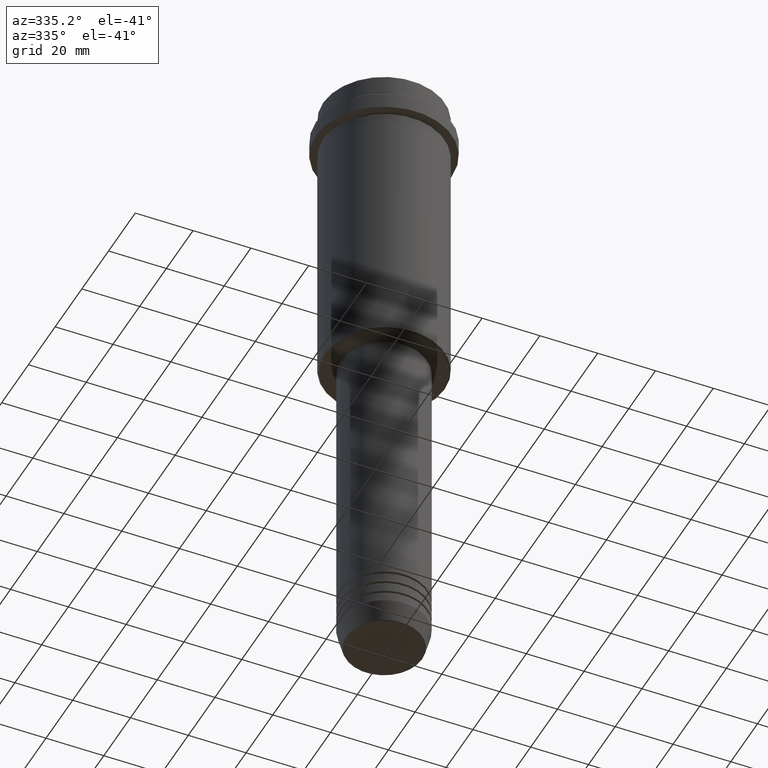
[diagram: clean part render]
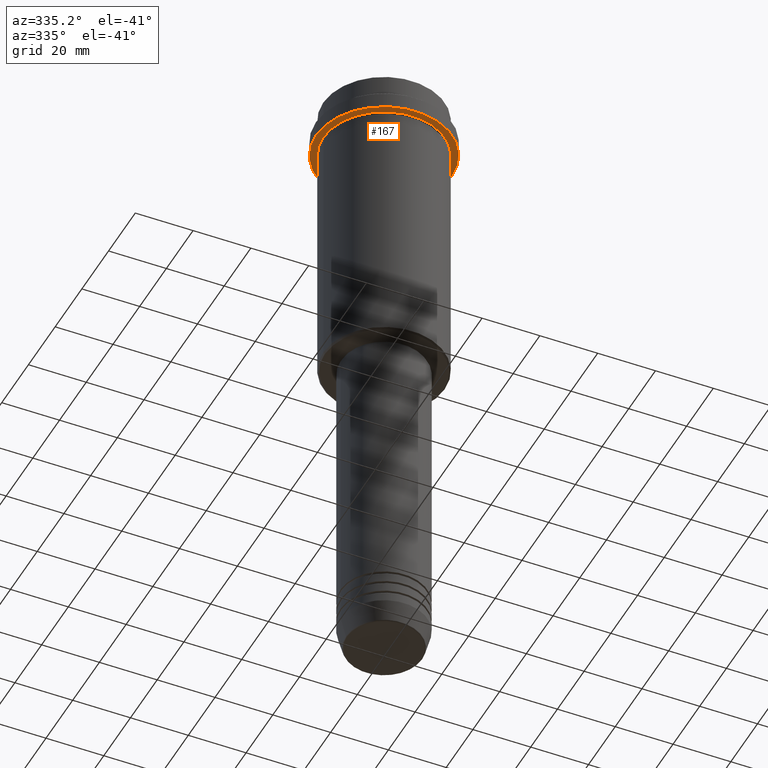
[diagram: same view with one face highlighted and labeled with its STEP entity id]
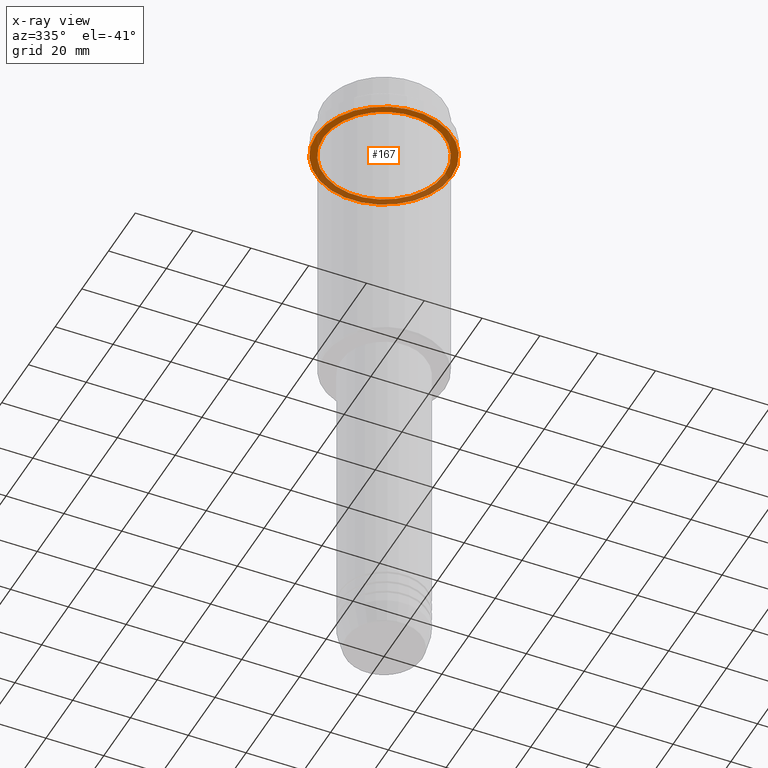
[diagram: x-ray of the same camera — body ghosted, the highlighted face saturated]
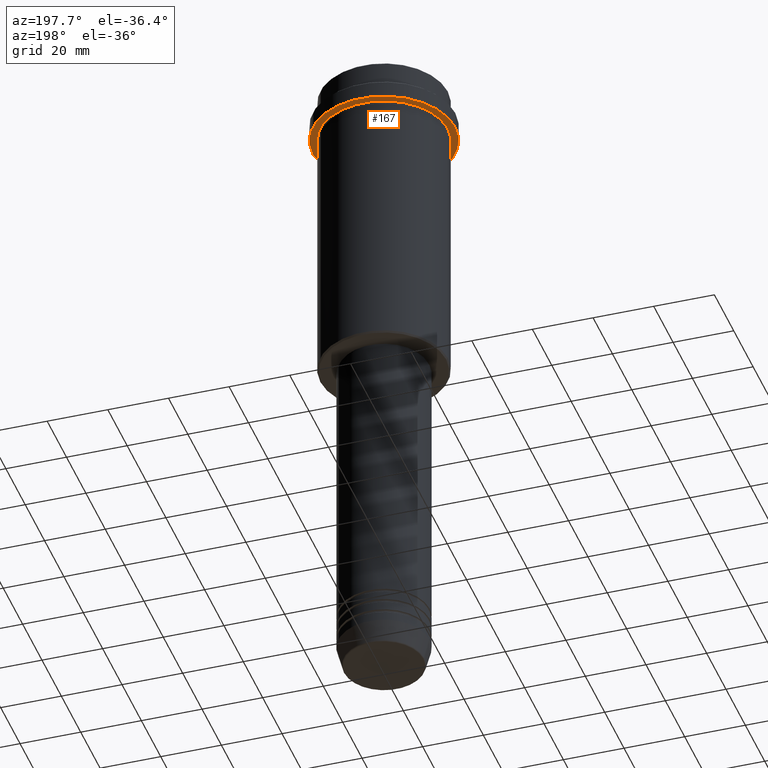
[diagram: same view with one face highlighted and labeled with its STEP entity id]
A machine part, auxiliary view. The second image highlights one B-rep face of the part: STEP entity #167.
The next image is the same camera in x-ray: the body ghosted, the highlighted face saturated — about 35% of this face is hidden behind the body in this view.
A second angle (auxiliary view) of the same face is appended — the face is thin or edge-on in the first view.
In plain terms, the highlighted planar face has unit normal (0, 0, -1).
Its self-contained STEP definition (entity closure, byte-faithful):
#31 = CARTESIAN_POINT ( 'NONE',  ( -23.50000000000000711, 2.877919977996281109E-15, -15.00000000000000000 ) ) ;
#58 = ORIENTED_EDGE ( 'NONE', *, *, #902, .F. ) ;
#112 = VERTEX_POINT ( 'NONE', #175 ) ;
#167 = ADVANCED_FACE ( 'NONE', ( #985, #203 ), #428, .T. ) ;
#175 = CARTESIAN_POINT ( 'NONE',  ( 23.50000000000000355, 0.000000000000000000, -15.00000000000000000 ) ) ;
#203 = FACE_OUTER_BOUND ( 'NONE', #637, .T. ) ;
#215 = AXIS2_PLACEMENT_3D ( 'NONE', #1242, #590, #280 ) ;
#243 = DIRECTION ( 'NONE',  ( -0.000000000000000000, -0.000000000000000000, 1.000000000000000000 ) ) ;
#258 = CARTESIAN_POINT ( 'NONE',  ( -20.99999999999999289, 0.000000000000000000, -15.00000000000000178 ) ) ;
#261 = CARTESIAN_POINT ( 'NONE',  ( 20.99999999999999289, 2.571758278209440872E-15, -15.00000000000000178 ) ) ;
#280 = DIRECTION ( 'NONE',  ( -1.000000000000000000, 0.000000000000000000, 0.000000000000000000 ) ) ;
#299 = DIRECTION ( 'NONE',  ( -0.000000000000000000, -0.000000000000000000, 1.000000000000000000 ) ) ;
#365 = CARTESIAN_POINT ( 'NONE',  ( 0.000000000000000000, 0.000000000000000000, -15.00000000000000178 ) ) ;
#424 = DIRECTION ( 'NONE',  ( 1.000000000000000000, 0.000000000000000000, 0.000000000000000000 ) ) ;
#428 = PLANE ( 'NONE',  #781 ) ;
#439 = VERTEX_POINT ( 'NONE', #261 ) ;
#484 = DIRECTION ( 'NONE',  ( -0.000000000000000000, -0.000000000000000000, 1.000000000000000000 ) ) ;
#529 = CIRCLE ( 'NONE', #1318, 23.50000000000000355 ) ;
#560 = EDGE_CURVE ( 'NONE', #112, #1393, #1345, .T. ) ;
#590 = DIRECTION ( 'NONE',  ( -0.000000000000000000, -0.000000000000000000, 1.000000000000000000 ) ) ;
#637 = EDGE_LOOP ( 'NONE', ( #1015, #58 ) ) ;
#652 = DIRECTION ( 'NONE',  ( -1.000000000000000000, 0.000000000000000000, -0.000000000000000000 ) ) ;
#674 = DIRECTION ( 'NONE',  ( 1.000000000000000000, 0.000000000000000000, 0.000000000000000000 ) ) ;
#678 = EDGE_CURVE ( 'NONE', #723, #439, #829, .T. ) ;
#685 = CIRCLE ( 'NONE', #215, 20.99999999999999289 ) ;
#692 = CARTESIAN_POINT ( 'NONE',  ( 0.000000000000000000, 0.000000000000000000, -15.00000000000000000 ) ) ;
#708 = EDGE_CURVE ( 'NONE', #439, #723, #685, .T. ) ;
#723 = VERTEX_POINT ( 'NONE', #258 ) ;
#738 = CARTESIAN_POINT ( 'NONE',  ( 0.000000000000000000, 23.50000000000000355, -15.00000000000000178 ) ) ;
#781 = AXIS2_PLACEMENT_3D ( 'NONE', #738, #1094, #652 ) ;
#805 = ORIENTED_EDGE ( 'NONE', *, *, #708, .T. ) ;
#829 = CIRCLE ( 'NONE', #1236, 20.99999999999999289 ) ;
#902 = EDGE_CURVE ( 'NONE', #1393, #112, #529, .T. ) ;
#985 = FACE_BOUND ( 'NONE', #1038, .T. ) ;
#1015 = ORIENTED_EDGE ( 'NONE', *, *, #560, .F. ) ;
#1038 = EDGE_LOOP ( 'NONE', ( #1325, #805 ) ) ;
#1094 = DIRECTION ( 'NONE',  ( 0.000000000000000000, 0.000000000000000000, -1.000000000000000000 ) ) ;
#1129 = AXIS2_PLACEMENT_3D ( 'NONE', #1277, #299, #424 ) ;
#1133 = DIRECTION ( 'NONE',  ( -1.000000000000000000, 0.000000000000000000, 0.000000000000000000 ) ) ;
#1236 = AXIS2_PLACEMENT_3D ( 'NONE', #365, #484, #1133 ) ;
#1242 = CARTESIAN_POINT ( 'NONE',  ( 0.000000000000000000, 0.000000000000000000, -15.00000000000000178 ) ) ;
#1277 = CARTESIAN_POINT ( 'NONE',  ( 0.000000000000000000, 0.000000000000000000, -15.00000000000000000 ) ) ;
#1318 = AXIS2_PLACEMENT_3D ( 'NONE', #692, #243, #674 ) ;
#1325 = ORIENTED_EDGE ( 'NONE', *, *, #678, .T. ) ;
#1345 = CIRCLE ( 'NONE', #1129, 23.50000000000000355 ) ;
#1393 = VERTEX_POINT ( 'NONE', #31 ) ;